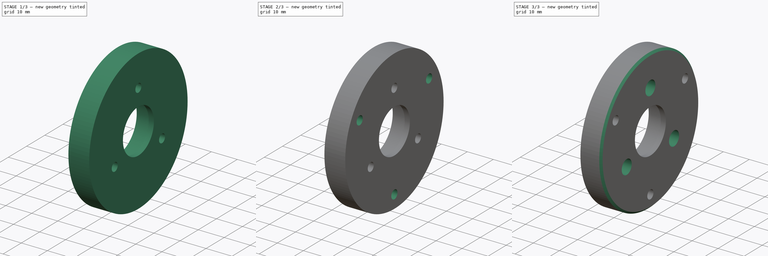
[diagram: build sequence overview — one tinted view per stage of 3, left to right]
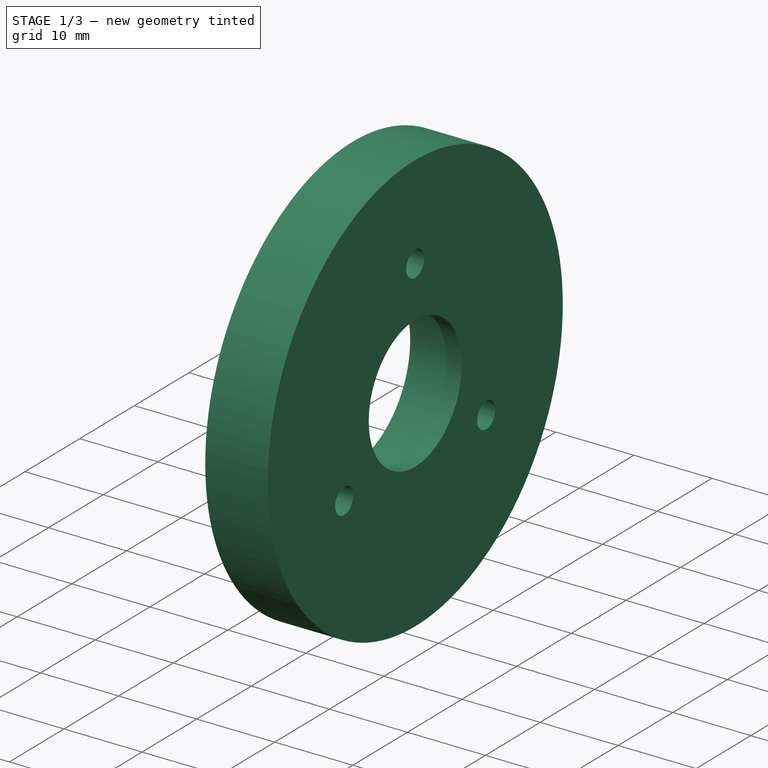
[diagram: stage 1 of 3 — iso view after this stage's code; geometry added in this stage tinted green]
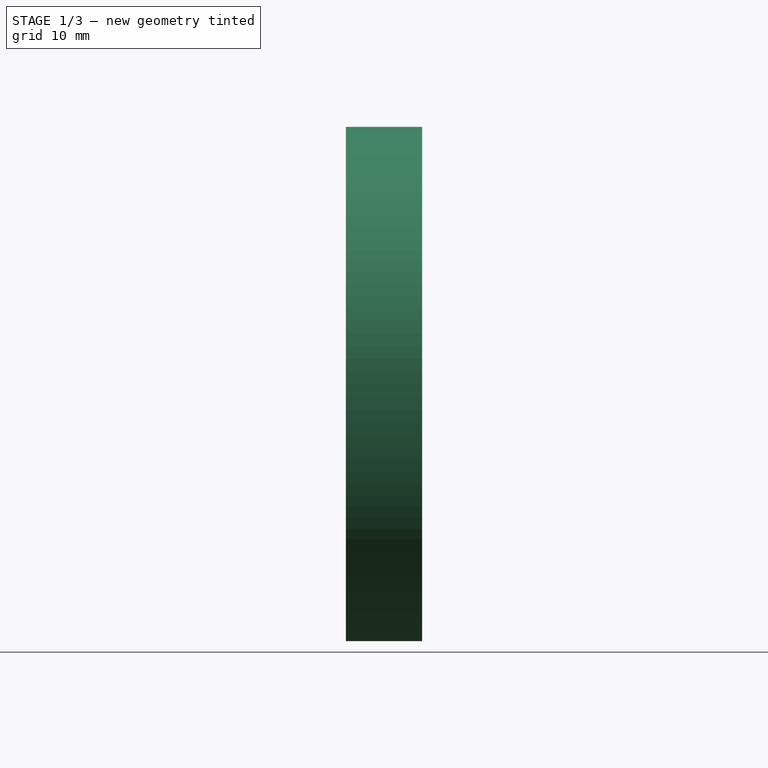
[diagram: stage 1 of 3 — front view after this stage's code; geometry added in this stage tinted green]
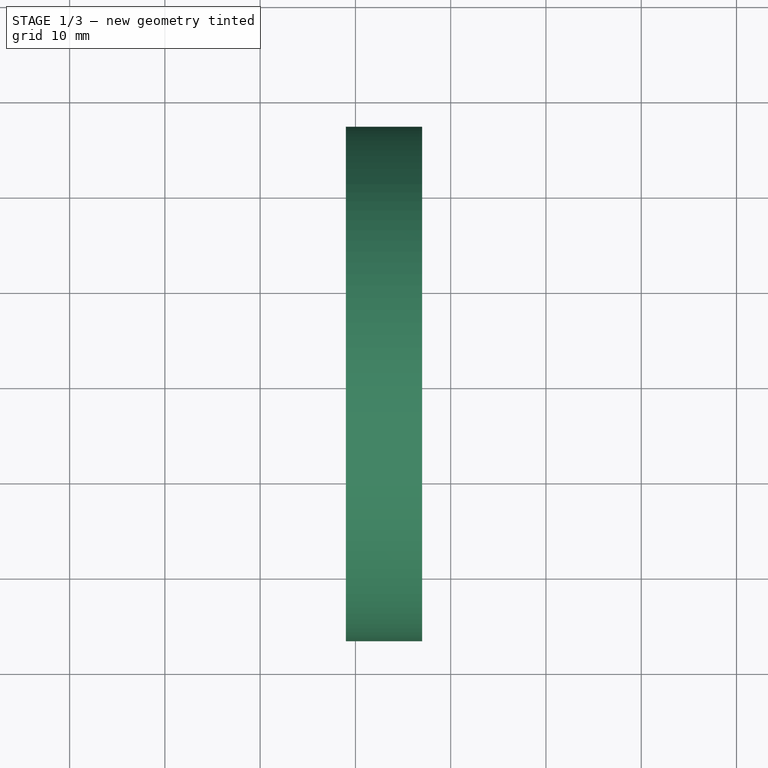
[diagram: stage 1 of 3 — top view after this stage's code; geometry added in this stage tinted green]
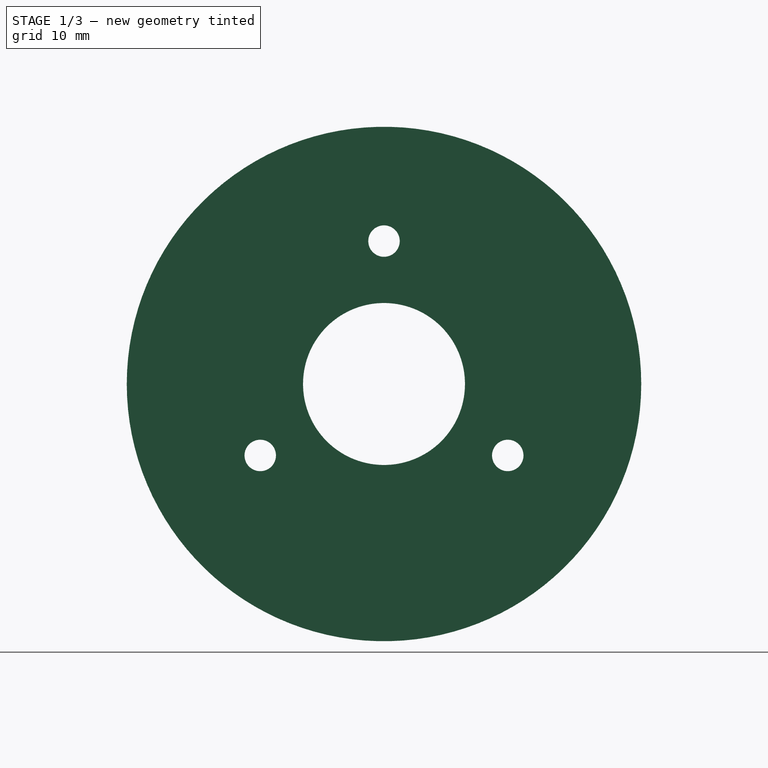
[diagram: stage 1 of 3 — right view after this stage's code; geometry added in this stage tinted green]
FCSTD DOCUMENT  (FreeCAD 0.21R32110 (Git))
Label: Pitch_Encoder_Spacer
License: All rights reserved
LicenseURL: http://en.wikipedia.org/wiki/All_rights_reserved
objects: Sketcher::SketchObject×4, PartDesign::Hole×2, PartDesign::Pad×1, PartDesign::Pocket×1, PartDesign::Chamfer×1, PartDesign::Body×1, App::Part×1
note: 15 computed .brp shape members not serialized (recipe doc carries the construction recipe); baked Part::Feature solids carry a one-line shape summary decoded from their .brp

FEATURE [Sketcher::SketchObject] Sketch046
  AttachmentOffset = pos=(0,0,69) rot=(0,0,1;0rad)
  FullyConstrained = true
  MapMode = 5
  Placement = pos=(69,-1.53e-14,1.53e-14) rot=(0.57735,0.57735,0.57735;2.0944rad)
  Support = -> [YZ_Plane015]
  sketch-geometry (8):
    g0: Circle CenterX=-10 CenterY=-6 CenterZ=0 NormalX=0 NormalY=0 NormalZ=1 AngleXU=0 Radius=27
    g1: Circle CenterX=-10 CenterY=-6 CenterZ=0 NormalX=0 NormalY=0 NormalZ=1 AngleXU=0 Radius=8.5
    g2: Circle CenterX=-10 CenterY=9 CenterZ=0 NormalX=0 NormalY=0 NormalZ=1 AngleXU=0 Radius=1.65
    g3: Circle CenterX=2.99038 CenterY=-13.5 CenterZ=0 NormalX=0 NormalY=0 NormalZ=1 AngleXU=0 Radius=1.65
    g4: Circle CenterX=-22.9904 CenterY=-13.5 CenterZ=0 NormalX=0 NormalY=0 NormalZ=1 AngleXU=0 Radius=1.65
    g5: LineSegment StartX=-10 StartY=9 StartZ=0 EndX=2.99038 EndY=-13.5 EndZ=0
    g6: LineSegment StartX=2.99038 StartY=-13.5 StartZ=0 EndX=-22.9904 EndY=-13.5 EndZ=0
    g7: LineSegment StartX=-22.9904 StartY=-13.5 StartZ=0 EndX=-10 EndY=9 EndZ=0
  constraints (20):
    c: DistanceY(g0) = -6
    c: DistanceX(g0) = -10
    c: Diameter(g0) = 54
    c: Coincident(g1,g0)
    c: Diameter(g1) = 17
    c: Equal(g2,g3)
    c: Equal(g2,g4)
    c: Diameter(g2) = 3.3
    c: Vertical(g0,g2)
    c: Distance(g0,g2) = 15
    c: Coincident(g5,g2)
    c: Coincident(g5,g3)
    c: Coincident(g5,g6)
    c: Coincident(g6,g4)
    c: Coincident(g6,g7)
    c: Coincident(g7,g5)
    c: Equal(g7,g5)
    c: Equal(g5,g6)
    c: Distance(g0,g3) = 15
    c: Distance(g0,g4) = 15
FEATURE [PartDesign::Pad] Pad029
  Direction = (1,-2e-16,3e-16)
  Length = 8
  Length2 = 10
  Placement = pos=(0,0,0) rot=(0.57735,0.57735,0.57735;2.0944rad)
  Profile = -> Sketch046
  ReferenceAxis = -> Sketch046 [N_Axis]
  Type = 0
FEATURE [Sketcher::SketchObject] Sketch048
  AttachmentOffset = pos=(0,0,69) rot=(0,0,1;0rad)
  FullyConstrained = true
  MapMode = 5
  Placement = pos=(69,-1.53e-14,1.53e-14) rot=(0.57735,0.57735,0.57735;2.0944rad)
  Support = -> [YZ_Plane015]
  sketch-geometry (1):
    g0: Circle CenterX=-10 CenterY=-6 CenterZ=0 NormalX=0 NormalY=0 NormalZ=1 AngleXU=0 Radius=10.5
  constraints (3):
    c: DistanceY(g0) = -6
    c: DistanceX(g0) = -10
    c: Diameter(g0) = 21
FEATURE [PartDesign::Pocket] Pocket014
  BaseFeature = -> Pad029
  Direction = (-1,2e-16,-3e-16)
  Length = 6
  Length2 = 5
  Placement = pos=(0,0,0) rot=(0.57735,0.57735,0.57735;2.0944rad)
  Profile = -> Sketch048
  ReferenceAxis = -> Sketch048 [N_Axis]
  Reversed = true
  Type = 0
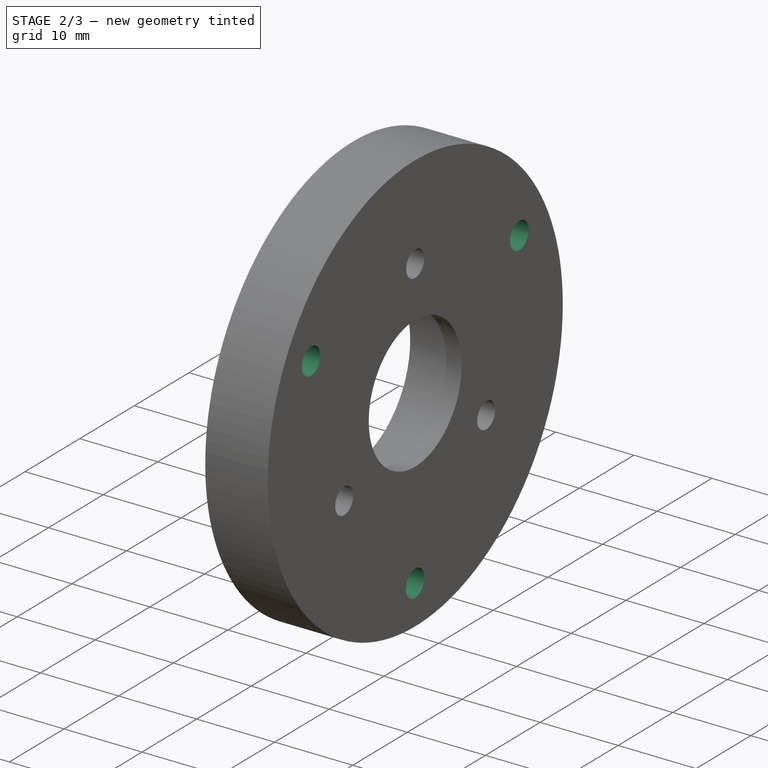
[diagram: stage 2 of 3 — iso view after this stage's code; geometry added in this stage tinted green]
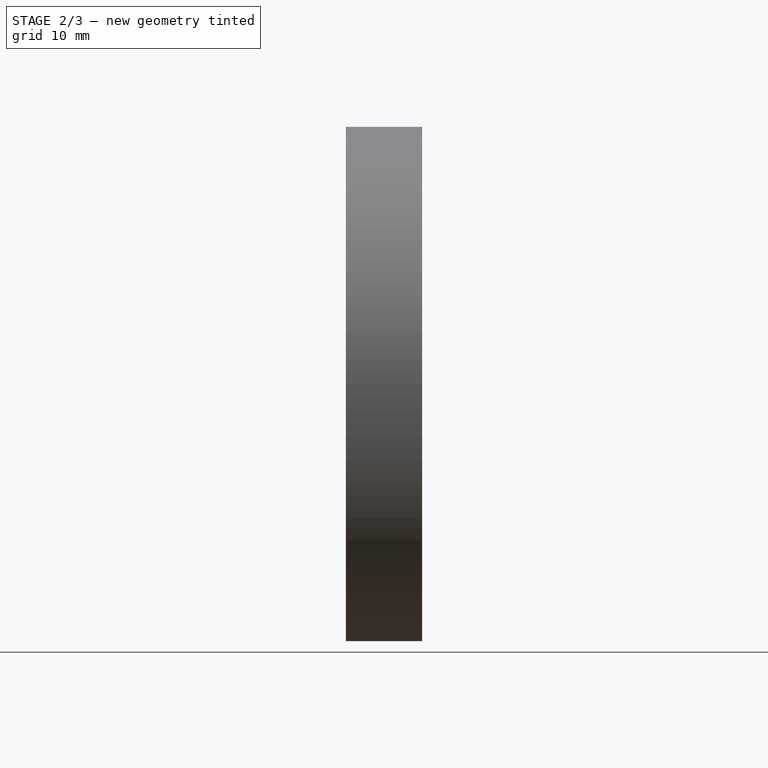
[diagram: stage 2 of 3 — front view after this stage's code; geometry added in this stage tinted green]
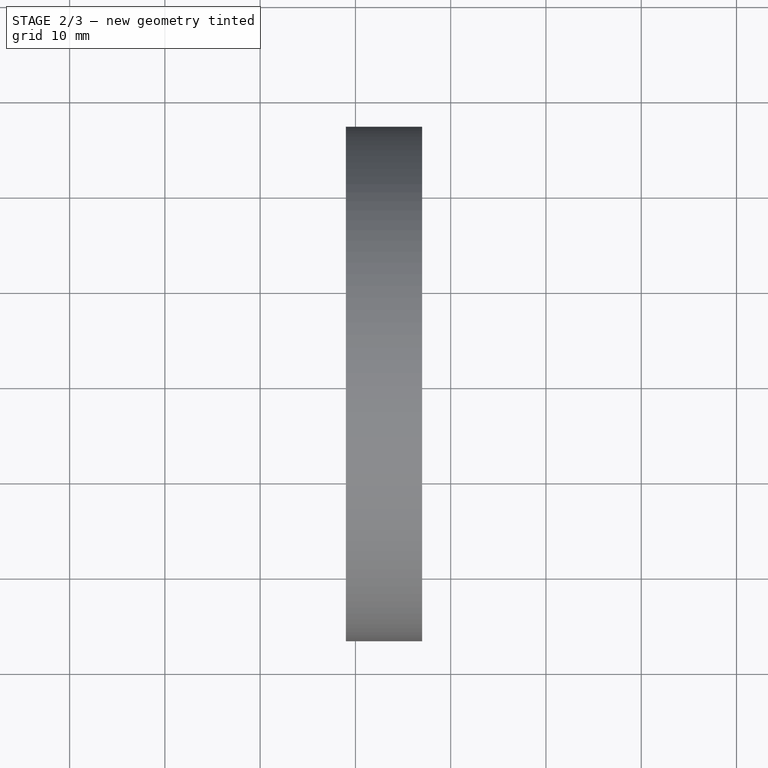
[diagram: stage 2 of 3 — top view after this stage's code; geometry added in this stage tinted green]
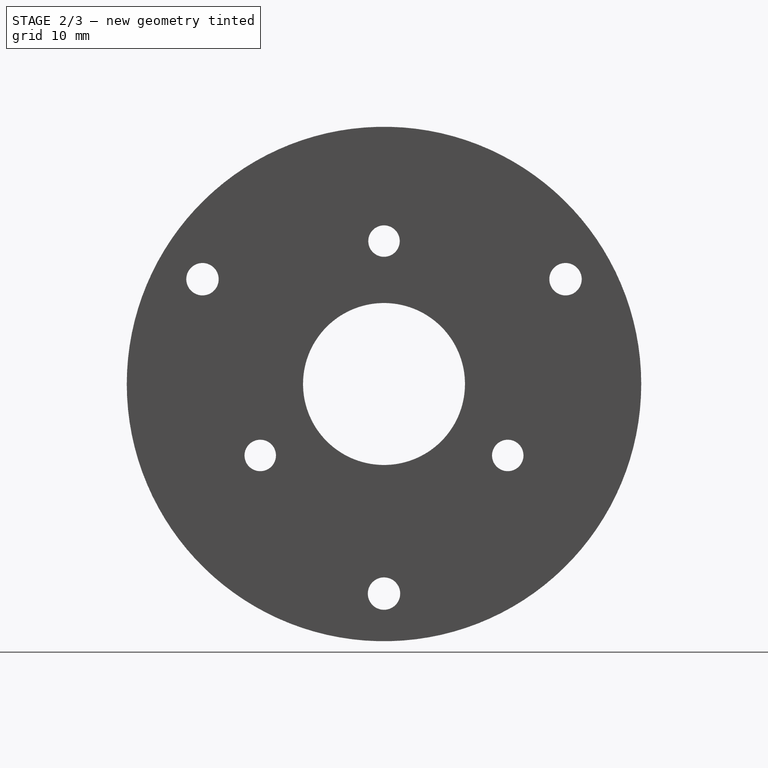
[diagram: stage 2 of 3 — right view after this stage's code; geometry added in this stage tinted green]
FEATURE [Sketcher::SketchObject] Sketch
  AttachmentOffset = pos=(0,0,69) rot=(0,0,1;0rad)
  FullyConstrained = true
  MapMode = 5
  Placement = pos=(69,-1.53e-14,1.53e-14) rot=(0.57735,0.57735,0.57735;2.0944rad)
  Support = -> [YZ_Plane015]
  sketch-geometry (8):
    g0: Circle CenterX=-10 CenterY=-6 CenterZ=0 NormalX=0 NormalY=0 NormalZ=1 AngleXU=0 Radius=22
    g1: LineSegment StartX=-10 StartY=-6 StartZ=0 EndX=-31.6506 EndY=6.5 EndZ=0
    g2: LineSegment StartX=-10 StartY=-6 StartZ=0 EndX=-10 EndY=19 EndZ=0
    g3: LineSegment StartX=-10 StartY=-6 StartZ=0 EndX=11.6506 EndY=6.5 EndZ=0
    g4: LineSegment StartX=-10 StartY=-6 StartZ=0 EndX=-10 EndY=-31 EndZ=0
    g5: Circle CenterX=-29.0526 CenterY=5 CenterZ=0 NormalX=0 NormalY=0 NormalZ=1 AngleXU=0 Radius=1.65
    g6: Circle CenterX=9.05256 CenterY=5 CenterZ=0 NormalX=0 NormalY=0 NormalZ=1 AngleXU=0 Radius=1.65
    g7: Circle CenterX=-10 CenterY=-28 CenterZ=0 NormalX=0 NormalY=0 NormalZ=1 AngleXU=0 Radius=1.65
  constraints (24):
    c: DistanceX(g0) = -10
    c: DistanceY(g0) = -6
    c: Coincident(g1,g0)
    c: Coincident(g2,g0)
    c: Vertical(g2)
    c: Distance(g2) = 25
    c: Distance(g1) = 25
    c: Angle(g2,g1) = 1.0472
    c: Diameter(g0) = 44
    c: Coincident(g3,g0)
    c: Coincident(g4,g0)
    c: Vertical(g4)
    c: Distance(g4) = 25
    c: Distance(g3) = 25
    c: Angle(g3,g1) = 2.0944
    c: PointOnObject(g7,g4)
    c: PointOnObject(g7,g0)
    c: PointOnObject(g5,g0)
    c: PointOnObject(g5,g1)
    c: PointOnObject(g6,g3)
    c: PointOnObject(g6,g0)
    c: Diameter(g5) = 3.3
    c: Equal(g5,g6)
    c: Equal(g6,g7)
FEATURE [PartDesign::Hole] Hole
  BaseFeature = -> Pocket014
  CustomThreadClearance = 0
  Depth = 155.107
  DepthType = 1
  Diameter = 3.4
  DrillForDepth = false
  DrillPoint = 1
  DrillPointAngle = 118
  HoleCutCountersinkAngle = 90
  HoleCutCustomValues = false
  HoleCutDepth = 4
  HoleCutDiameter = 5.5
  HoleCutType = 1
  ModelThread = false
  Placement = pos=(0,0,0) rot=(0.57735,0.57735,0.57735;2.0944rad)
  Profile = -> Sketch
  Reversed = true
  Tapered = false
  TaperedAngle = 90
  ThreadClass = 0
  ThreadDepth = 155.107
  ThreadDepthType = 0
  ThreadDirection = 0
  ThreadFit = 0
  ThreadSize = 9
  ThreadType = 1
  Threaded = false
  UseCustomThreadClearance = false
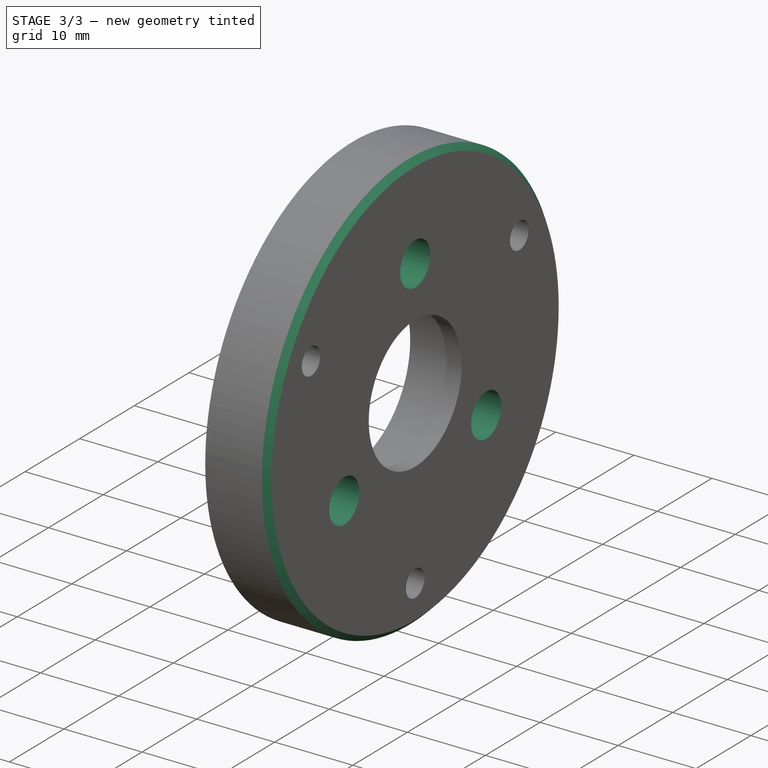
[diagram: stage 3 of 3 — iso view after this stage's code; geometry added in this stage tinted green]
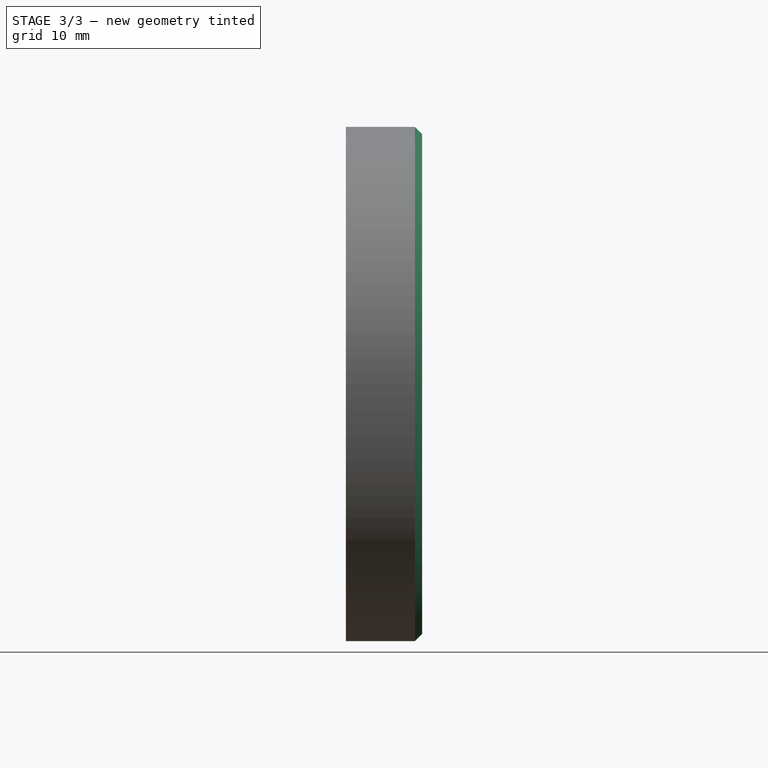
[diagram: stage 3 of 3 — front view after this stage's code; geometry added in this stage tinted green]
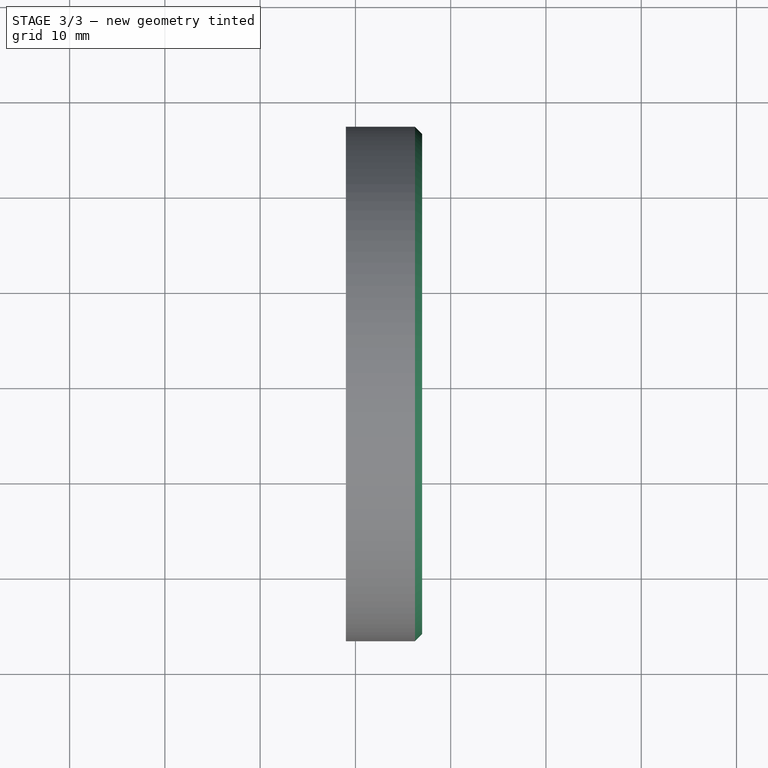
[diagram: stage 3 of 3 — top view after this stage's code; geometry added in this stage tinted green]
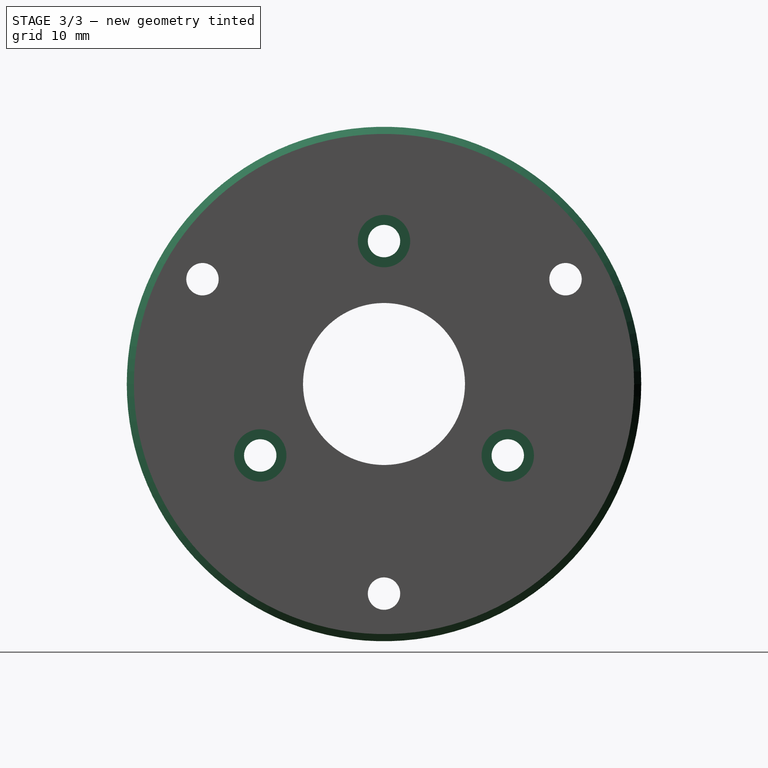
[diagram: stage 3 of 3 — right view after this stage's code; geometry added in this stage tinted green]
FEATURE [Sketcher::SketchObject] Sketch049
  AttachmentOffset = pos=(0,0,77) rot=(0,0,1;0rad)
  FullyConstrained = true
  MapMode = 5
  Placement = pos=(77,-1.71e-14,1.71e-14) rot=(0.57735,0.57735,0.57735;2.0944rad)
  Support = -> [YZ_Plane015]
  sketch-geometry (7):
    g0: Circle CenterX=-10 CenterY=-6 CenterZ=0 NormalX=0 NormalY=0 NormalZ=1 AngleXU=0 Radius=15
    g1: LineSegment StartX=-10 StartY=-6 StartZ=0 EndX=-10 EndY=9 EndZ=0
    g2: LineSegment StartX=-10 StartY=-6 StartZ=0 EndX=-22.9904 EndY=-13.5 EndZ=0
    g3: LineSegment StartX=-10 StartY=-6 StartZ=0 EndX=2.99038 EndY=-13.5 EndZ=0
    g4: Circle CenterX=-22.9904 CenterY=-13.5 CenterZ=0 NormalX=0 NormalY=0 NormalZ=1 AngleXU=0 Radius=1.6
    g5: Circle CenterX=-10 CenterY=9 CenterZ=0 NormalX=0 NormalY=0 NormalZ=1 AngleXU=0 Radius=1.6
    g6: Circle CenterX=2.99038 CenterY=-13.5 CenterZ=0 NormalX=0 NormalY=0 NormalZ=1 AngleXU=0 Radius=1.6
  constraints (18):
    c: DistanceX(g0) = -10
    c: DistanceY(g0) = -6
    c: Diameter(g0) = 30
    c: Coincident(g1,g0)
    c: PointOnObject(g1,g0)
    c: Vertical(g1)
    c: Coincident(g2,g1)
    c: PointOnObject(g2,g0)
    c: Coincident(g3,g1)
    c: PointOnObject(g3,g0)
    c: Angle(g3,g1) = 2.0944
    c: Angle(g1,g2) = 2.0944
    c: Coincident(g4,g2)
    c: Coincident(g5,g1)
    c: Coincident(g6,g3)
    c: Diameter(g4) = 3.2
    c: Equal(g4,g5)
    c: Equal(g5,g6)
FEATURE [PartDesign::Hole] Hole001
  BaseFeature = -> Hole
  CustomThreadClearance = 0
  Depth = 154.845
  DepthType = 1
  Diameter = 3.4
  DrillForDepth = false
  DrillPoint = 1
  DrillPointAngle = 118
  HoleCutCountersinkAngle = 90
  HoleCutCustomValues = false
  HoleCutDepth = 4
  HoleCutDiameter = 5.5
  HoleCutType = 1
  ModelThread = false
  Placement = pos=(0,0,0) rot=(0.57735,0.57735,0.57735;2.0944rad)
  Profile = -> Sketch049
  Tapered = false
  TaperedAngle = 90
  ThreadClass = 0
  ThreadDepth = 154.845
  ThreadDepthType = 0
  ThreadDirection = 0
  ThreadFit = 0
  ThreadSize = 9
  ThreadType = 1
  Threaded = false
  UseCustomThreadClearance = false
FEATURE [PartDesign::Chamfer] Chamfer
  Angle = 45
  Base = -> Hole001 [Edge3]
  BaseFeature = -> Hole001
  ChamferType = 0
  FlipDirection = false
  Placement = pos=(0,0,0) rot=(0.57735,0.57735,0.57735;2.0944rad)
  Size = 0.75
  Size2 = 1
  SupportTransform = false
  UseAllEdges = false
FEATURE [PartDesign::Body] Body011  label="Pitch Encoder Spacer"
  Group = -> [Sketch046,Pad029,Sketch048,Pocket014,Sketch,Hole,Sketch049,Hole001,Chamfer]
  Origin = -> Origin015
  Placement = pos=(2,-6,7) rot=(0,0,1;0rad)
  Tip = -> Chamfer
FEATURE [App::Part] Part
  Group = -> [Body011]
  Origin = -> Origin
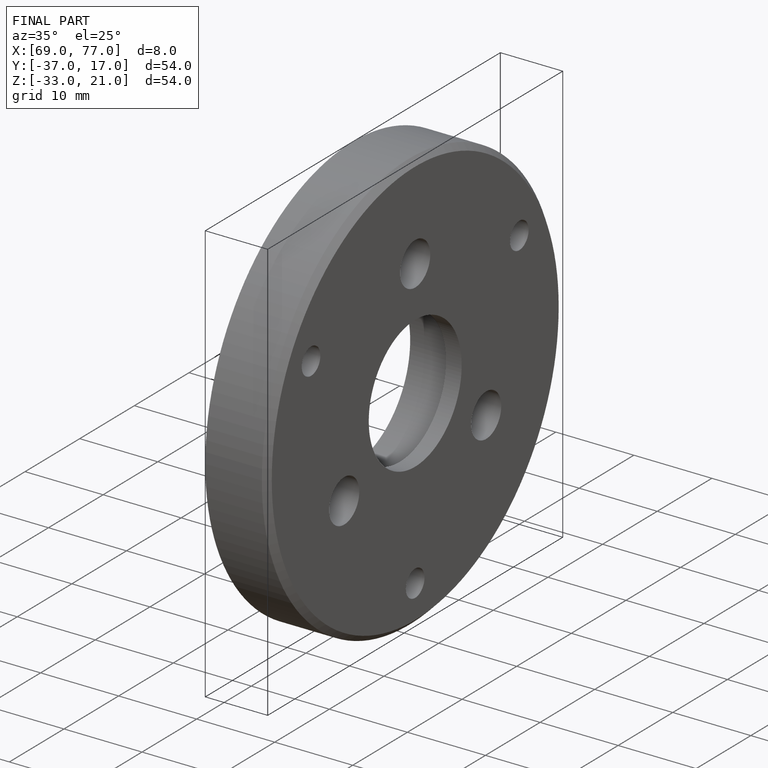
[diagram: finished part — iso view with bounding-box wireframe]
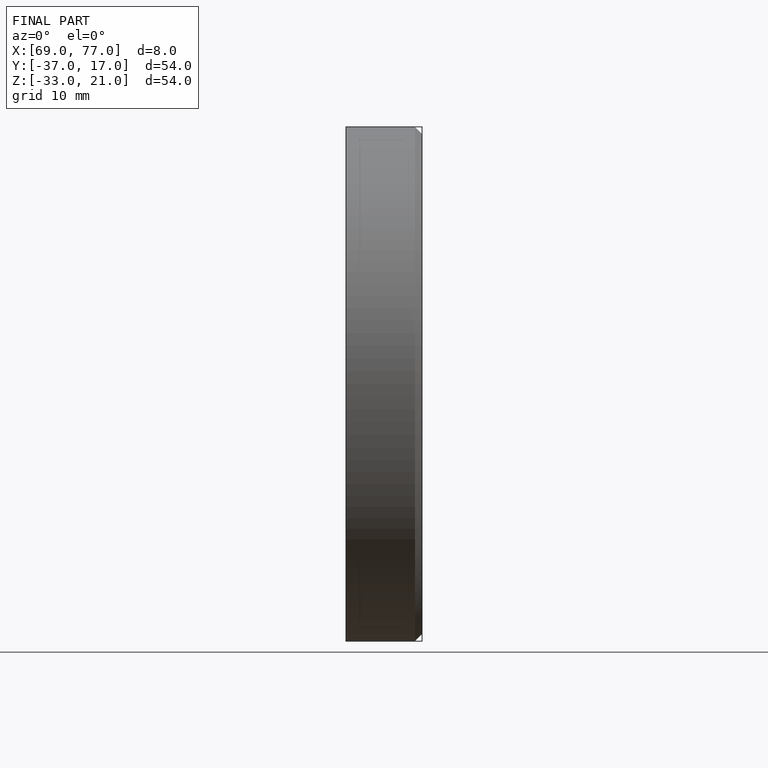
[diagram: finished part — front view with bounding-box wireframe]
